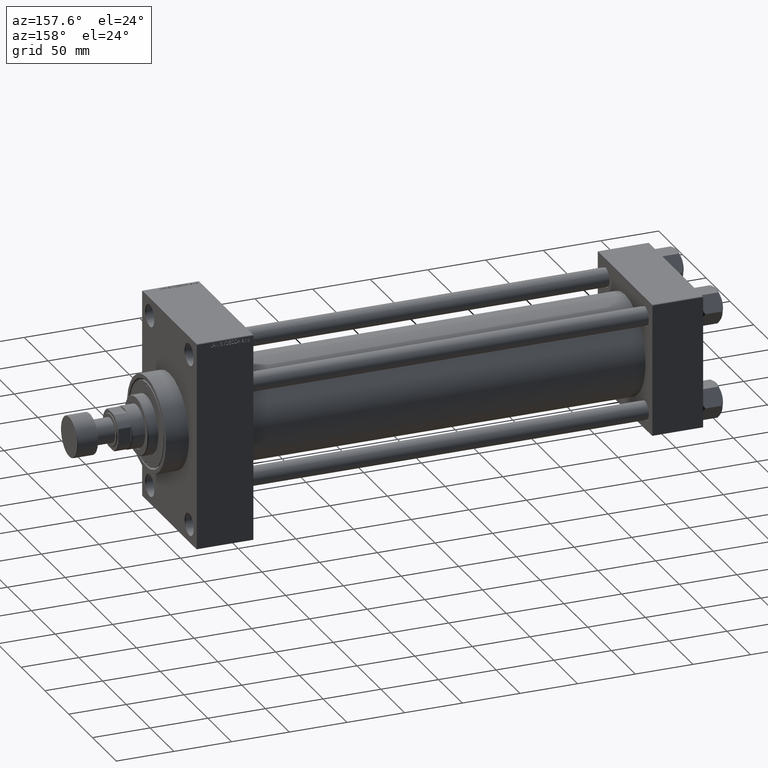
[diagram: clean part render]
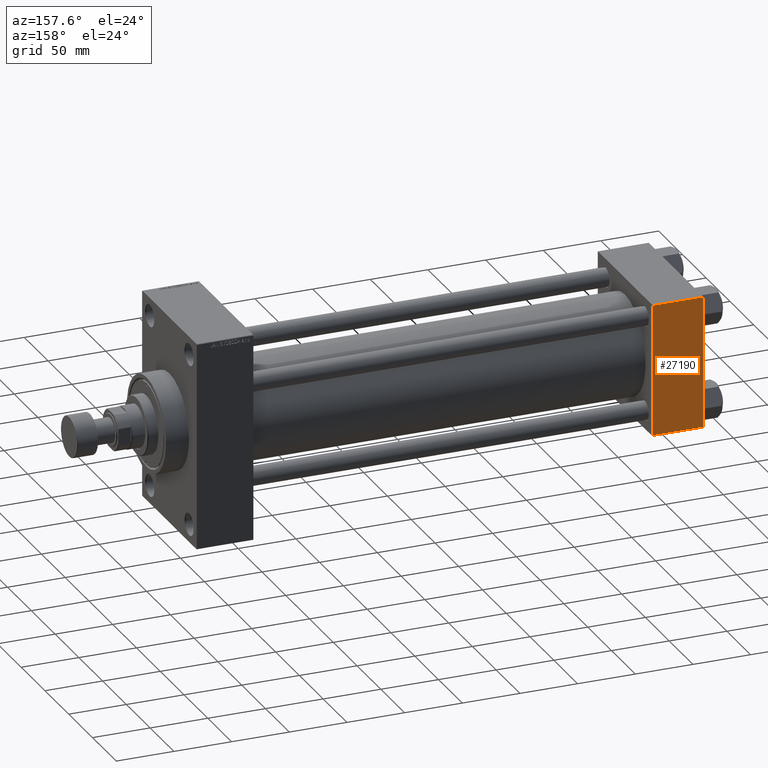
[diagram: same view with one face highlighted and labeled with its STEP entity id]
A machine part, auxiliary view. The second image highlights one B-rep face of the part: STEP entity #27190.
In plain terms, the highlighted planar face has unit normal (0, 1, 0).
Its self-contained STEP definition (entity closure, byte-faithful):
#3206 = CARTESIAN_POINT ( 'NONE',  ( 44.00000000000000000, 57.49999999999999289, -57.00000000000000711 ) ) ;
#4288 = ORIENTED_EDGE ( 'NONE', *, *, #47797, .T. ) ;
#4365 = VERTEX_POINT ( 'NONE', #5246 ) ;
#4399 = VECTOR ( 'NONE', #35498, 1000.000000000000000 ) ;
#5246 = CARTESIAN_POINT ( 'NONE',  ( 0.000000000000000000, 57.49999999999999289, -57.00000000000000711 ) ) ;
#5437 = CARTESIAN_POINT ( 'NONE',  ( 44.00000000000000000, 57.49999999999999289, 57.50000000000000711 ) ) ;
#8251 = AXIS2_PLACEMENT_3D ( 'NONE', #36712, #22515, #18628 ) ;
#8973 = VECTOR ( 'NONE', #9619, 1000.000000000000000 ) ;
#9619 = DIRECTION ( 'NONE',  ( 1.000000000000000000, 0.000000000000000000, 0.000000000000000000 ) ) ;
#11307 = DIRECTION ( 'NONE',  ( 0.000000000000000000, 0.000000000000000000, -1.000000000000000000 ) ) ;
#13281 = LINE ( 'NONE', #43595, #8973 ) ;
#18628 = DIRECTION ( 'NONE',  ( 0.000000000000000000, -0.000000000000000000, 1.000000000000000000 ) ) ;
#18852 = DIRECTION ( 'NONE',  ( -1.000000000000000000, 0.000000000000000000, 0.000000000000000000 ) ) ;
#21315 = VECTOR ( 'NONE', #11307, 1000.000000000000000 ) ;
#21411 = EDGE_CURVE ( 'NONE', #30687, #27082, #13281, .T. ) ;
#22515 = DIRECTION ( 'NONE',  ( -0.000000000000000000, 1.000000000000000000, 0.000000000000000000 ) ) ;
#24018 = LINE ( 'NONE', #5437, #4399 ) ;
#25727 = CARTESIAN_POINT ( 'NONE',  ( 0.000000000000000000, 57.49999999999999289, 57.50000000000000711 ) ) ;
#25802 = VERTEX_POINT ( 'NONE', #41160 ) ;
#27082 = VERTEX_POINT ( 'NONE', #35992 ) ;
#27190 = ADVANCED_FACE ( 'NONE', ( #44523 ), #41116, .T. ) ;
#30687 = VERTEX_POINT ( 'NONE', #45324 ) ;
#32225 = ORIENTED_EDGE ( 'NONE', *, *, #43271, .T. ) ;
#33313 = LINE ( 'NONE', #25727, #21315 ) ;
#35498 = DIRECTION ( 'NONE',  ( 0.000000000000000000, 0.000000000000000000, -1.000000000000000000 ) ) ;
#35798 = EDGE_LOOP ( 'NONE', ( #4288, #32225, #46191, #42503 ) ) ;
#35992 = CARTESIAN_POINT ( 'NONE',  ( 44.00000000000000000, 57.49999999999999289, 57.00000000000003553 ) ) ;
#36712 = CARTESIAN_POINT ( 'NONE',  ( 44.00000000000000000, 57.49999999999999289, 57.50000000000000711 ) ) ;
#40436 = EDGE_CURVE ( 'NONE', #30687, #4365, #33313, .T. ) ;
#40607 = LINE ( 'NONE', #3206, #47940 ) ;
#41116 = PLANE ( 'NONE',  #8251 ) ;
#41160 = CARTESIAN_POINT ( 'NONE',  ( 44.00000000000000000, 57.49999999999999289, -57.00000000000000711 ) ) ;
#42503 = ORIENTED_EDGE ( 'NONE', *, *, #21411, .T. ) ;
#43271 = EDGE_CURVE ( 'NONE', #25802, #4365, #40607, .T. ) ;
#43595 = CARTESIAN_POINT ( 'NONE',  ( 44.00000000000000000, 57.49999999999999289, 57.00000000000003553 ) ) ;
#44523 = FACE_OUTER_BOUND ( 'NONE', #35798, .T. ) ;
#45324 = CARTESIAN_POINT ( 'NONE',  ( 0.000000000000000000, 57.49999999999999289, 57.00000000000003553 ) ) ;
#46191 = ORIENTED_EDGE ( 'NONE', *, *, #40436, .F. ) ;
#47797 = EDGE_CURVE ( 'NONE', #27082, #25802, #24018, .T. ) ;
#47940 = VECTOR ( 'NONE', #18852, 1000.000000000000000 ) ;